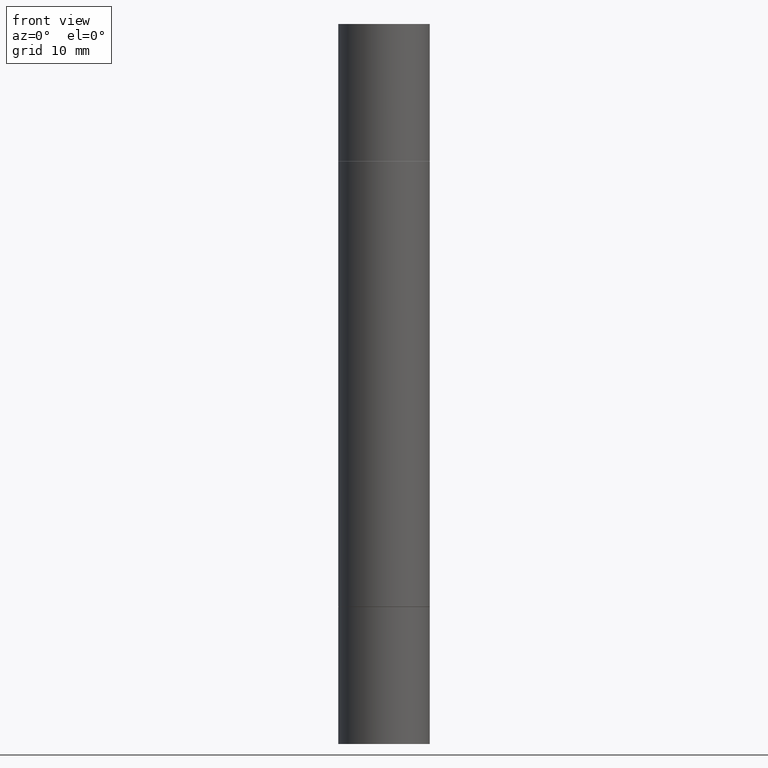
[diagram: clean part render]
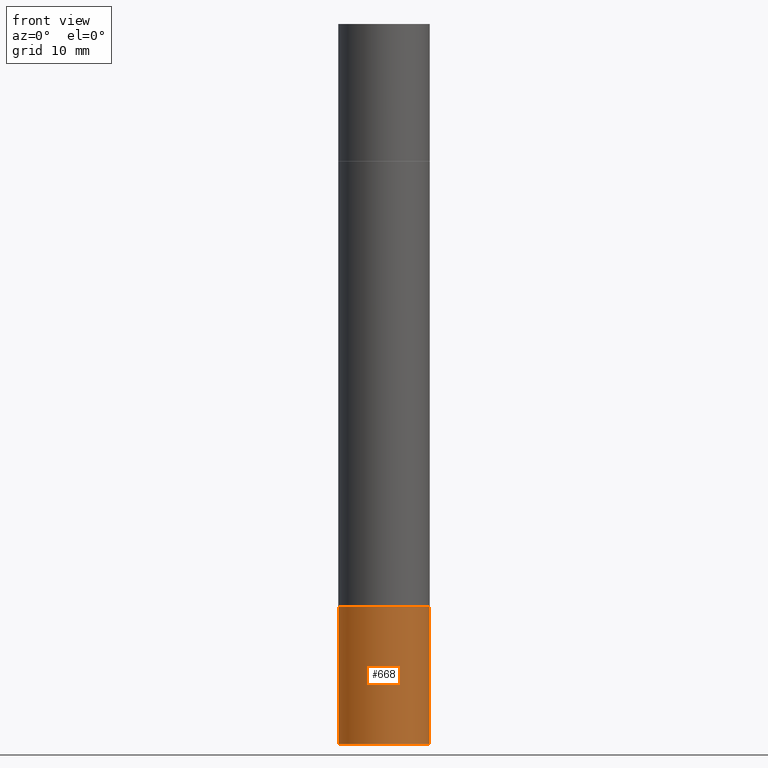
[diagram: same view with one face highlighted and labeled with its STEP entity id]
A machine part, front view. The second image highlights one B-rep face of the part: STEP entity #668.
In plain terms, the highlighted cylindrical surface (partial cylindrical patch) has radius 4.0005 mm, axis along (-0, 0, 1).
Its self-contained STEP definition (entity closure, byte-faithful):
#19 = CARTESIAN_POINT ( 'NONE',  ( 4.910256815939136430E-29, -7.010545380263152499E-15, -2.007900000000000240 ) ) ;
#71 = EDGE_CURVE ( 'NONE', #308, #106, #324, .T. ) ;
#101 = LINE ( 'NONE', #374, #179 ) ;
#106 = VERTEX_POINT ( 'NONE', #145 ) ;
#119 = AXIS2_PLACEMENT_3D ( 'NONE', #19, #434, #562 ) ;
#123 = DIRECTION ( 'NONE',  ( -2.445468806185136597E-29, 3.491481338843145583E-15, 1.000000000000000000 ) ) ;
#145 = CARTESIAN_POINT ( 'NONE',  ( 0.1575000000000000011, -9.759737786468242027E-15, -2.480300000000000171 ) ) ;
#179 = VECTOR ( 'NONE', #417, 39.37007874015748143 ) ;
#205 = EDGE_CURVE ( 'NONE', #106, #611, #302, .T. ) ;
#211 = AXIS2_PLACEMENT_3D ( 'NONE', #347, #123, #647 ) ;
#214 = FACE_OUTER_BOUND ( 'NONE', #422, .T. ) ;
#217 = CARTESIAN_POINT ( 'NONE',  ( 0.1575000000000000011, -8.110362001998739191E-15, -2.007900000000000240 ) ) ;
#263 = DIRECTION ( 'NONE',  ( 1.000000000000000000, -6.982962677686265922E-15, 4.876176775795935232E-29 ) ) ;
#270 = ORIENTED_EDGE ( 'NONE', *, *, #205, .T. ) ;
#291 = DIRECTION ( 'NONE',  ( -2.445468806185136877E-29, 3.491481338843145188E-15, 1.000000000000000000 ) ) ;
#302 = LINE ( 'NONE', #573, #528 ) ;
#308 = VERTEX_POINT ( 'NONE', #552 ) ;
#310 = EDGE_CURVE ( 'NONE', #598, #611, #426, .T. ) ;
#313 = AXIS2_PLACEMENT_3D ( 'NONE', #593, #476, #263 ) ;
#324 = CIRCLE ( 'NONE', #211, 0.1575000000000000011 ) ;
#347 = CARTESIAN_POINT ( 'NONE',  ( 6.065496279980994755E-29, -8.659921164732655335E-15, -2.480300000000000171 ) ) ;
#360 = ORIENTED_EDGE ( 'NONE', *, *, #310, .F. ) ;
#368 = ORIENTED_EDGE ( 'NONE', *, *, #71, .T. ) ;
#374 = CARTESIAN_POINT ( 'NONE',  ( -0.1575000000000000011, 1.119104808822157801E-15, -7.747322767151475583E-30 ) ) ;
#417 = DIRECTION ( 'NONE',  ( -2.445468806185136877E-29, 3.491481338843145188E-15, 1.000000000000000000 ) ) ;
#422 = EDGE_LOOP ( 'NONE', ( #669, #368, #270, #360 ) ) ;
#426 = CIRCLE ( 'NONE', #119, 0.1575000000000000011 ) ;
#434 = DIRECTION ( 'NONE',  ( -2.445468806185136597E-29, 3.491481338843145583E-15, 1.000000000000000000 ) ) ;
#476 = DIRECTION ( 'NONE',  ( -2.445468806185136597E-29, 3.491481338843145583E-15, 1.000000000000000000 ) ) ;
#528 = VECTOR ( 'NONE', #291, 39.37007874015748143 ) ;
#552 = CARTESIAN_POINT ( 'NONE',  ( -0.1575000000000000011, -6.716128463675745525E-15, -2.480300000000000171 ) ) ;
#562 = DIRECTION ( 'NONE',  ( 1.000000000000000000, -6.982962677686268288E-15, 0.000000000000000000 ) ) ;
#573 = CARTESIAN_POINT ( 'NONE',  ( 0.1575000000000000011, -1.099816621735586889E-15, 7.679978421878598033E-30 ) ) ;
#593 = CARTESIAN_POINT ( 'NONE',  ( 0.000000000000000000, 0.000000000000000000, 0.000000000000000000 ) ) ;
#598 = VERTEX_POINT ( 'NONE', #624 ) ;
#602 = EDGE_CURVE ( 'NONE', #308, #598, #101, .T. ) ;
#611 = VERTEX_POINT ( 'NONE', #217 ) ;
#624 = CARTESIAN_POINT ( 'NONE',  ( -0.1575000000000000011, -6.716128463675745525E-15, -2.007900000000000240 ) ) ;
#647 = DIRECTION ( 'NONE',  ( 1.000000000000000000, -6.982962677686261977E-15, 0.000000000000000000 ) ) ;
#668 = ADVANCED_FACE ( 'NONE', ( #214 ), #678, .T. ) ;
#669 = ORIENTED_EDGE ( 'NONE', *, *, #602, .F. ) ;
#678 = CYLINDRICAL_SURFACE ( 'NONE', #313, 0.1575000000000000011 ) ;